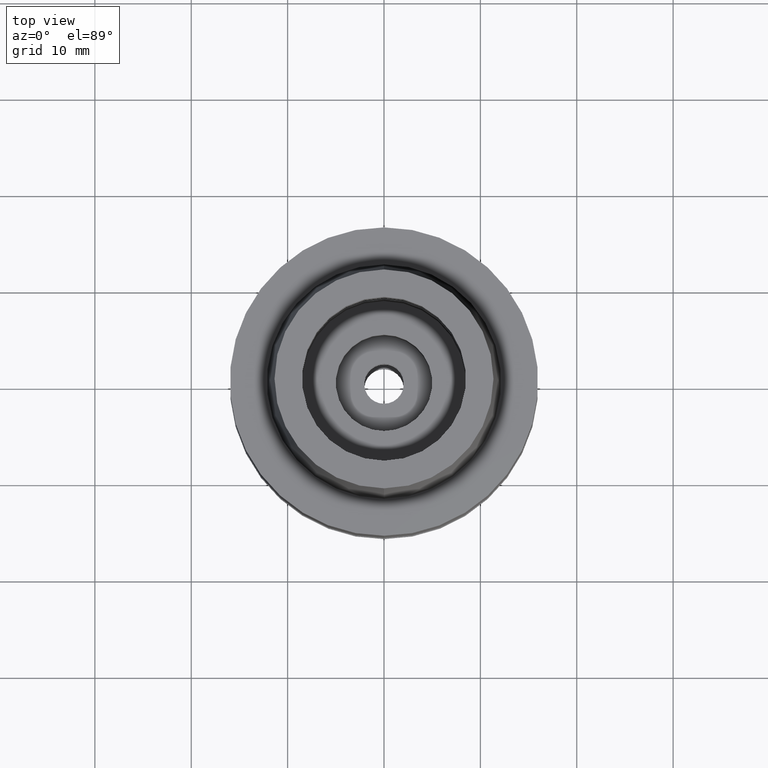
[diagram: clean part render]
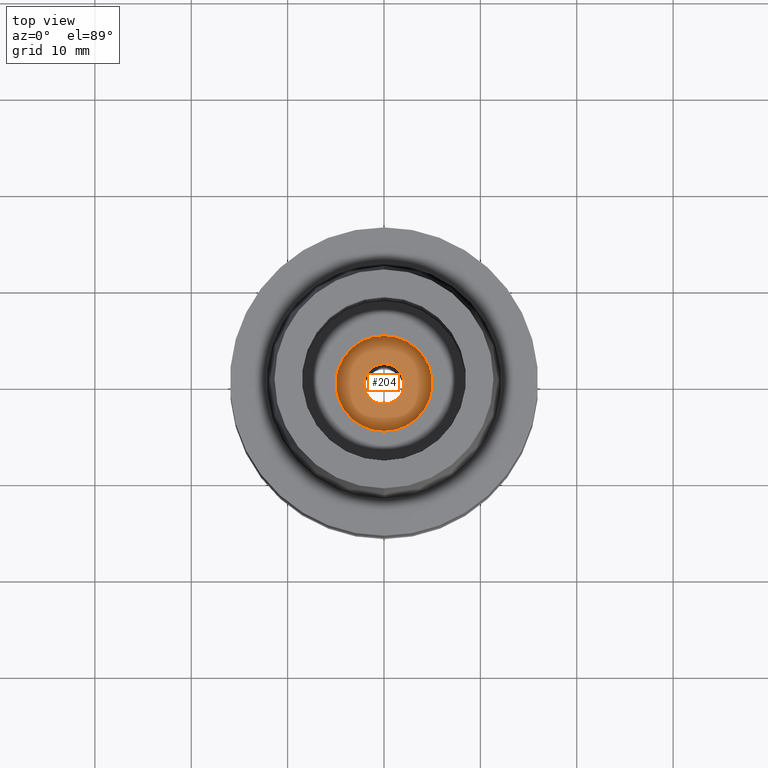
[diagram: same view with one face highlighted and labeled with its STEP entity id]
A machine part, top view. The second image highlights one B-rep face of the part: STEP entity #204.
In plain terms, the highlighted planar face has unit normal (0, 0, 1).
Its self-contained STEP definition (entity closure, byte-faithful):
#65 = ORIENTED_EDGE ( 'NONE', *, *, #2581, .F. ) ;
#80 = CARTESIAN_POINT ( 'NONE',  ( 0.0000000000000000000, 0.0000000000000000000, -13.95000000000000107 ) ) ;
#129 = VERTEX_POINT ( 'NONE', #2256 ) ;
#175 = ORIENTED_EDGE ( 'NONE', *, *, #1469, .F. ) ;
#204 = ADVANCED_FACE ( 'NONE', ( #229, #1069 ), #2523, .T. ) ;
#229 = FACE_OUTER_BOUND ( 'NONE', #2197, .T. ) ;
#273 = CARTESIAN_POINT ( 'NONE',  ( 0.0000000000000000000, 0.0000000000000000000, -13.95000000000000107 ) ) ;
#408 = VERTEX_POINT ( 'NONE', #1523 ) ;
#553 = AXIS2_PLACEMENT_3D ( 'NONE', #80, #923, #1501 ) ;
#619 = ORIENTED_EDGE ( 'NONE', *, *, #2559, .F. ) ;
#671 = DIRECTION ( 'NONE',  ( 0.0000000000000000000, 0.0000000000000000000, 1.000000000000000000 ) ) ;
#699 = DIRECTION ( 'NONE',  ( 0.0000000000000000000, 0.0000000000000000000, -1.000000000000000000 ) ) ;
#854 = DIRECTION ( 'NONE',  ( 1.000000000000000000, 0.0000000000000000000, 0.0000000000000000000 ) ) ;
#923 = DIRECTION ( 'NONE',  ( 0.0000000000000000000, 0.0000000000000000000, 1.000000000000000000 ) ) ;
#1069 = FACE_BOUND ( 'NONE', #1968, .T. ) ;
#1115 = DIRECTION ( 'NONE',  ( 0.0000000000000000000, 1.000000000000000000, 0.0000000000000000000 ) ) ;
#1136 = AXIS2_PLACEMENT_3D ( 'NONE', #2571, #1922, #1513 ) ;
#1142 = CARTESIAN_POINT ( 'NONE',  ( 0.0000000000000000000, 0.0000000000000000000, -13.95000000000000107 ) ) ;
#1313 = VERTEX_POINT ( 'NONE', #1405 ) ;
#1392 = CIRCLE ( 'NONE', #1136, 5.000000000000000000 ) ;
#1405 = CARTESIAN_POINT ( 'NONE',  ( 0.0000000000000000000, -5.000000000000000000, -13.95000000000000107 ) ) ;
#1469 = EDGE_CURVE ( 'NONE', #1656, #1313, #2220, .T. ) ;
#1501 = DIRECTION ( 'NONE',  ( 0.0000000000000000000, -1.000000000000000000, 0.0000000000000000000 ) ) ;
#1512 = DIRECTION ( 'NONE',  ( 0.0000000000000000000, 0.0000000000000000000, 1.000000000000000000 ) ) ;
#1513 = DIRECTION ( 'NONE',  ( 0.0000000000000000000, -1.000000000000000000, 0.0000000000000000000 ) ) ;
#1523 = CARTESIAN_POINT ( 'NONE',  ( 0.0000000000000000000, 2.100000000000000089, -13.95000000000000107 ) ) ;
#1656 = VERTEX_POINT ( 'NONE', #2007 ) ;
#1773 = DIRECTION ( 'NONE',  ( 0.0000000000000000000, 1.000000000000000000, 0.0000000000000000000 ) ) ;
#1922 = DIRECTION ( 'NONE',  ( 0.0000000000000000000, 0.0000000000000000000, -1.000000000000000000 ) ) ;
#1966 = AXIS2_PLACEMENT_3D ( 'NONE', #273, #671, #1115 ) ;
#1968 = EDGE_LOOP ( 'NONE', ( #619, #2530 ) ) ;
#2007 = CARTESIAN_POINT ( 'NONE',  ( 0.0000000000000000000, 5.000000000000000000, -13.95000000000000107 ) ) ;
#2179 = CIRCLE ( 'NONE', #553, 2.100000000000000089 ) ;
#2197 = EDGE_LOOP ( 'NONE', ( #175, #65 ) ) ;
#2219 = AXIS2_PLACEMENT_3D ( 'NONE', #2539, #1512, #854 ) ;
#2220 = CIRCLE ( 'NONE', #2613, 5.000000000000000000 ) ;
#2256 = CARTESIAN_POINT ( 'NONE',  ( 0.0000000000000000000, -2.100000000000000089, -13.95000000000000107 ) ) ;
#2300 = CIRCLE ( 'NONE', #1966, 2.100000000000000089 ) ;
#2523 = PLANE ( 'NONE',  #2219 ) ;
#2530 = ORIENTED_EDGE ( 'NONE', *, *, #2647, .F. ) ;
#2539 = CARTESIAN_POINT ( 'NONE',  ( 0.0000000000000000000, 0.0000000000000000000, -13.95000000000000107 ) ) ;
#2559 = EDGE_CURVE ( 'NONE', #408, #129, #2300, .T. ) ;
#2571 = CARTESIAN_POINT ( 'NONE',  ( 0.0000000000000000000, 0.0000000000000000000, -13.95000000000000107 ) ) ;
#2581 = EDGE_CURVE ( 'NONE', #1313, #1656, #1392, .T. ) ;
#2613 = AXIS2_PLACEMENT_3D ( 'NONE', #1142, #699, #1773 ) ;
#2647 = EDGE_CURVE ( 'NONE', #129, #408, #2179, .T. ) ;